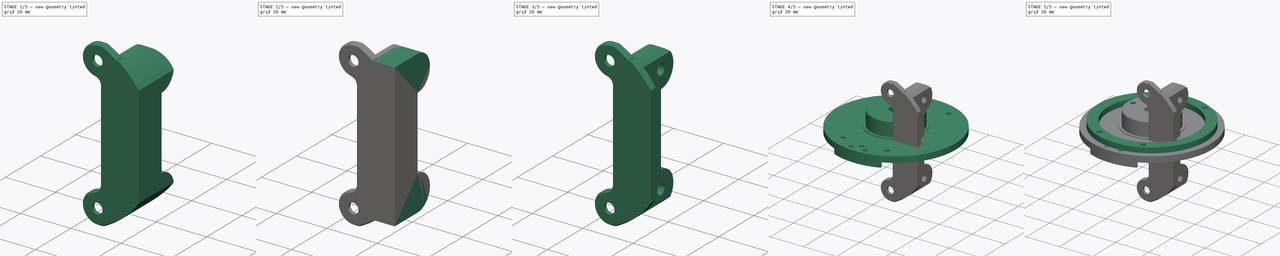
[diagram: build sequence overview — one tinted view per stage of 5, left to right]
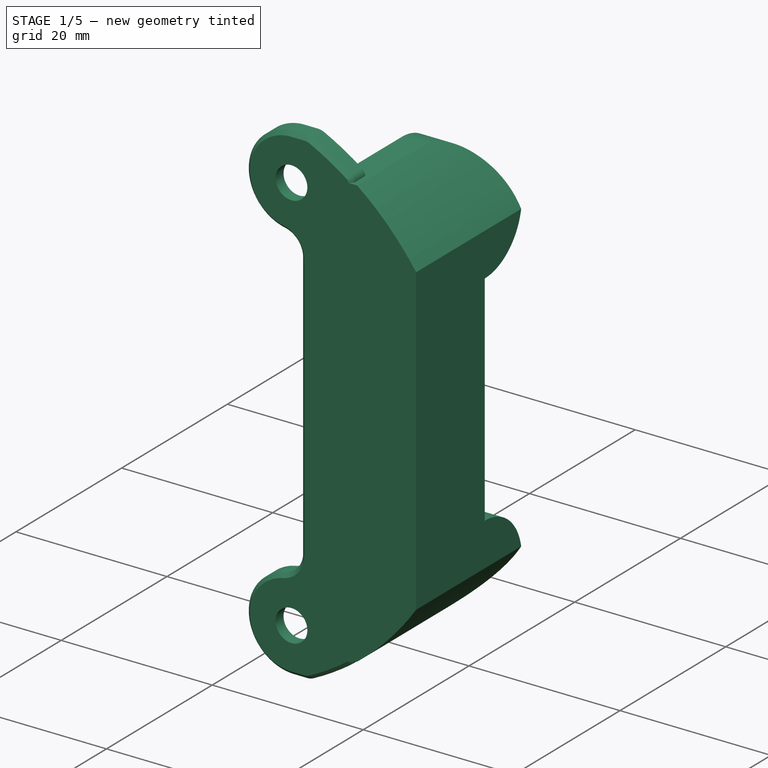
[diagram: stage 1 of 5 — iso view after this stage's code; geometry added in this stage tinted green]
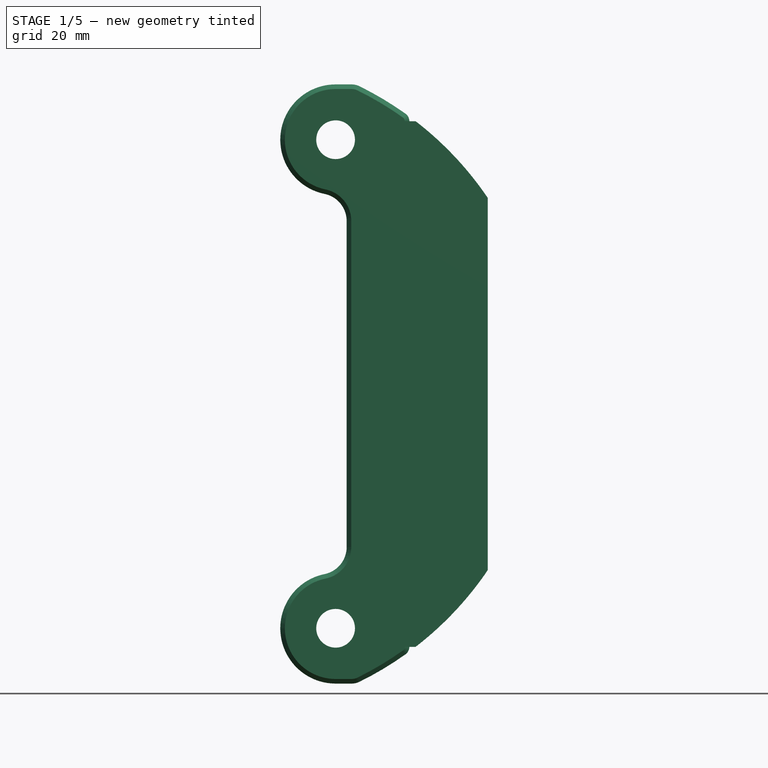
[diagram: stage 1 of 5 — front view after this stage's code; geometry added in this stage tinted green]
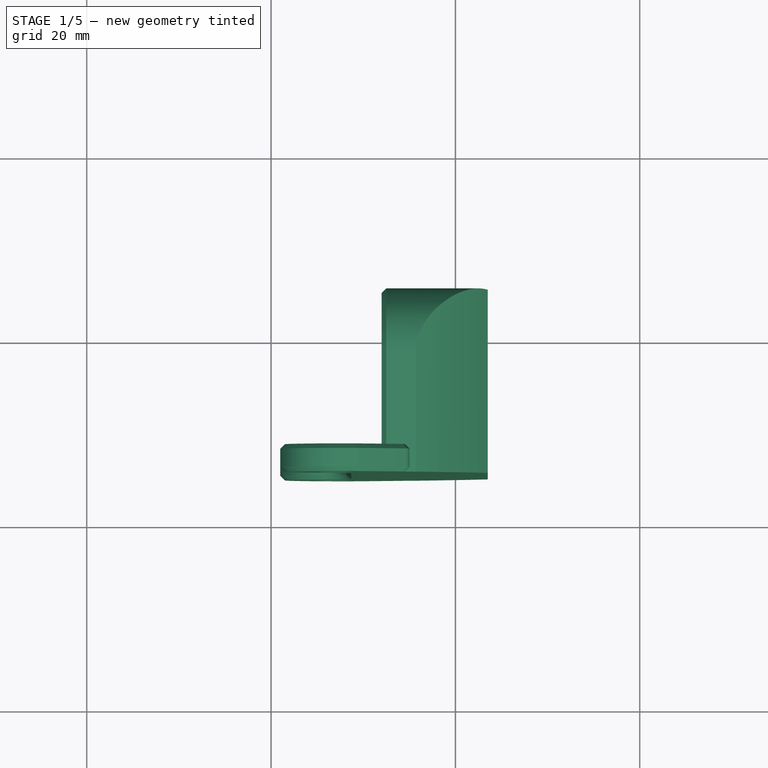
[diagram: stage 1 of 5 — top view after this stage's code; geometry added in this stage tinted green]
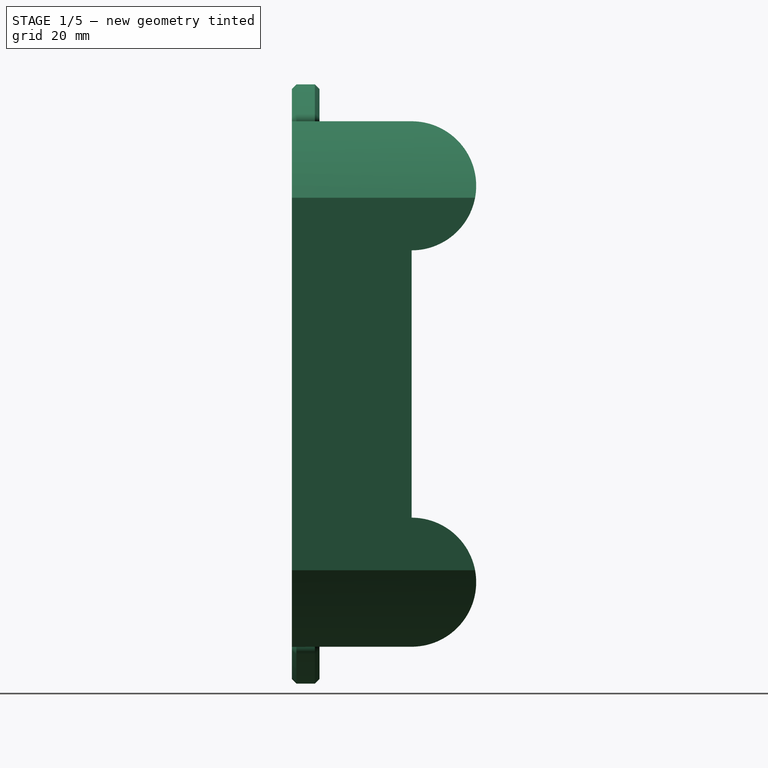
[diagram: stage 1 of 5 — right view after this stage's code; geometry added in this stage tinted green]
FCSTD DOCUMENT  (FreeCAD 0.18R16146 (Git))
Label: RotaryBaseMotorHold
License: All rights reserved
LicenseURL: http://en.wikipedia.org/wiki/All_rights_reserved
objects: Sketcher::SketchObject×14, PartDesign::Pocket×10, PartDesign::Pad×4, Part::Feature×3, PartDesign::FeatureBase×3, PartDesign::Body×3
note: 51 computed .brp shape members not serialized (recipe doc carries the construction recipe); baked Part::Feature solids carry a one-line shape summary decoded from their .brp

FEATURE [PartDesign::Body] Body
  BaseFeature = -> Part__Feature094
  Group = -> [BaseFeature,Sketch074,Pad017,Sketch075,Pocket046,Sketch076,Pocket047,Sketch077,Pocket048]
  Origin = -> Origin
  Placement = pos=(75.2,81.2,97.3) rot=(0.57735,0.57735,0.57735;2.0944rad)
  Tip = -> Pocket048
FEATURE [Part::Feature] Part__Feature095  label="L型连接件（一体化）002"
  Placement = pos=(85.1146,121.403,-113.604) rot=(0,-1,0;1.5708rad)
  shape: bbox 65 x 20 x 14 mm, 82 faces (baked)
FEATURE [PartDesign::FeatureBase] BaseFeature002
  BaseFeature = -> Part__Feature095
FEATURE [Sketcher::SketchObject] Sketch078
  ExternalGeometry = -> [BaseFeature002]
  MapMode = 7
  Placement = pos=(14.5,-12,14.5) rot=(0.57735,0.57735,0.57735;2.0944rad)
  Support = -> [BaseFeature002]
  sketch-geometry (6):
    g0: LineSegment StartX=-3 StartY=14 StartZ=0 EndX=10 EndY=14 EndZ=0
    g1: LineSegment StartX=10 StartY=3.6e-15 StartZ=0 EndX=10 EndY=-29 EndZ=0
    g2: LineSegment StartX=10 StartY=-43 StartZ=0 EndX=-3 EndY=-43.0116 EndZ=0
    g3: LineSegment StartX=-3 StartY=-43.0116 StartZ=0 EndX=-3 EndY=14 EndZ=0
    g4: ArcOfCircle CenterX=10 CenterY=7 CenterZ=0 NormalX=0 NormalY=0 NormalZ=1 AngleXU=0 Radius=7 StartAngle=4.71239 EndAngle=7.85398
    g5: ArcOfCircle CenterX=10 CenterY=-36 CenterZ=0 NormalX=0 NormalY=0 NormalZ=1 AngleXU=0 Radius=7 StartAngle=4.71239 EndAngle=7.85398
  constraints (16):
    c: Coincident(g2,g3)
    c: Coincident(g3,g0)
    c: Horizontal(g0)
    c: Vertical(g1)
    c: Vertical(g3)
    c: Coincident(g0,g-3)
    c: Coincident(g-6,g2)
    c: Coincident(g4,g-3)
    c: Coincident(g4,g0)
    c: Coincident(g4,g-3)
    c: Coincident(g5,g-4)
    c: Coincident(g5,g-4)
    c: PointOnObject(g1,g5)
    c: Coincident(g5,g-4)
    c: Coincident(g2,g5)
    c: Coincident(g1,g4)
FEATURE [PartDesign::Pad] Pad018
  BaseFeature = -> BaseFeature002
  Length = 9
  Length2 = 100
  Profile = -> Sketch078
  Type = 0
FEATURE [Sketcher::SketchObject] Sketch079
  ExternalGeometry = -> [Pad018]
  MapMode = 5
  Placement = pos=(0,-15,0) rot=(1,0,0;1.5708rad)
  Support = -> [Pad018]
  sketch-geometry (10):
    g0: ArcOfCircle CenterX=-6.3 CenterY=0 CenterZ=0 NormalX=0 NormalY=0 NormalZ=1 AngleXU=0 Radius=36 StartAngle=0.595661 EndAngle=0.913532
    g1: GeomPoint X=23.5 Y=20.198 Z=0
    g2: GeomPoint X=23.5 Y=-20.198 Z=0
    g3: GeomPoint X=15.6943 Y=28.5 Z=0
    g4: LineSegment StartX=15.6943 StartY=28.5 StartZ=0 EndX=23.5 EndY=28.5 EndZ=0
    g5: LineSegment StartX=23.5 StartY=28.5 StartZ=0 EndX=23.5 EndY=20.198 EndZ=0
    g6: GeomPoint X=15.6793 Y=-28.5116 Z=0
    g7: LineSegment StartX=15.6793 StartY=-28.5116 StartZ=0 EndX=23.5 EndY=-28.5116 EndZ=0
    g8: LineSegment StartX=23.5 StartY=-28.5116 StartZ=0 EndX=23.5 EndY=-20.198 EndZ=0
    g9: ArcOfCircle CenterX=-6.3 CenterY=0 CenterZ=0 NormalX=0 NormalY=0 NormalZ=1 AngleXU=0 Radius=36 StartAngle=5.36913 EndAngle=5.68752
  constraints (25):
    c: PointOnObject(g0,g-1)
    c: Radius(g0) = 36
    c: Distance(g0,g-2) = 6.3
    c: PointOnObject(g1,g0)
    c: PointOnObject(g1,g-3)
    c: PointOnObject(g2,g0)
    c: PointOnObject(g2,g-3)
    c: PointOnObject(g3,g-4)
    c: PointOnObject(g3,g0)
    c: Coincident(g4,g3)
    c: Coincident(g4,g-4)
    c: Coincident(g5,g4)
    c: Coincident(g5,g1)
    c: PointOnObject(g6,g-5)
    c: PointOnObject(g6,g0)
    c: Coincident(g7,g6)
    c: Coincident(g7,g-5)
    c: Coincident(g8,g7)
    c: Coincident(g8,g2)
    c: PointOnObject(g0,g5)
    c: PointOnObject(g9,g8)
    c: Equal(g0,g9)
    c: PointOnObject(g0,g4)
    c: PointOnObject(g9,g7)
    c: Coincident(g0,g9)
FEATURE [PartDesign::Pocket] Pocket050
  BaseFeature = -> Pad018
  Length = 22
  Length2 = 100
  Profile = -> Sketch079
  Type = 0
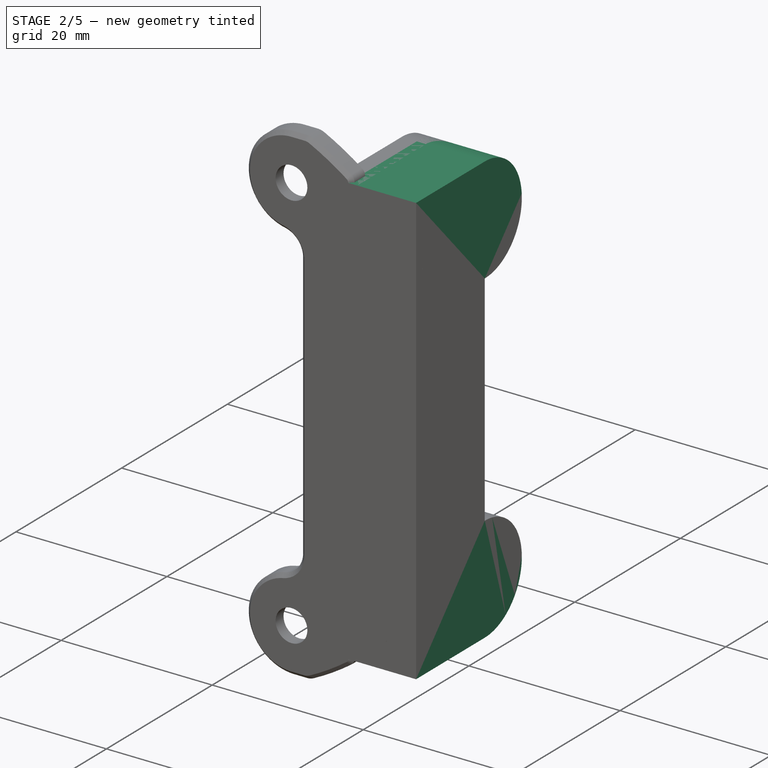
[diagram: stage 2 of 5 — iso view after this stage's code; geometry added in this stage tinted green]
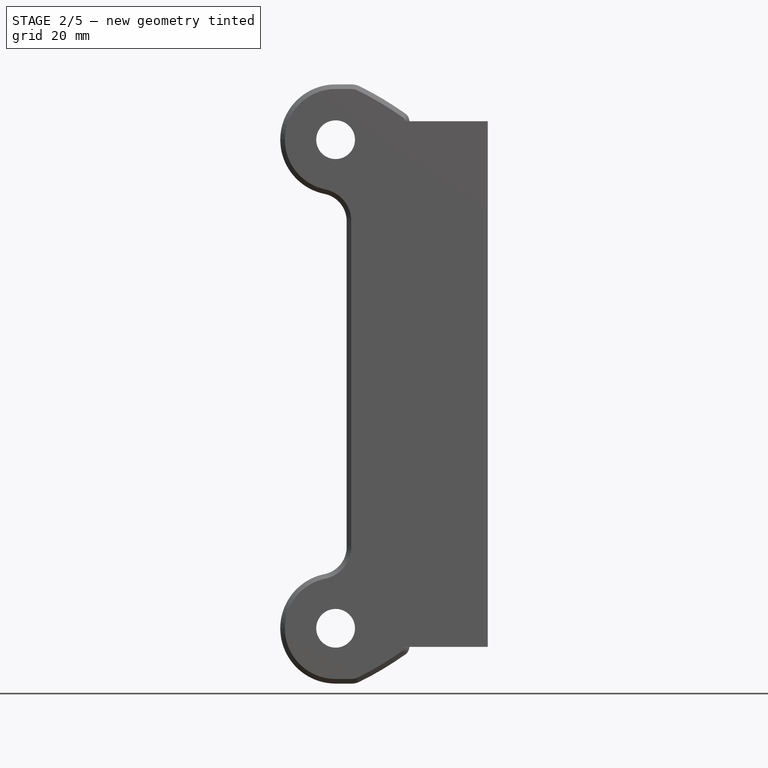
[diagram: stage 2 of 5 — front view after this stage's code; geometry added in this stage tinted green]
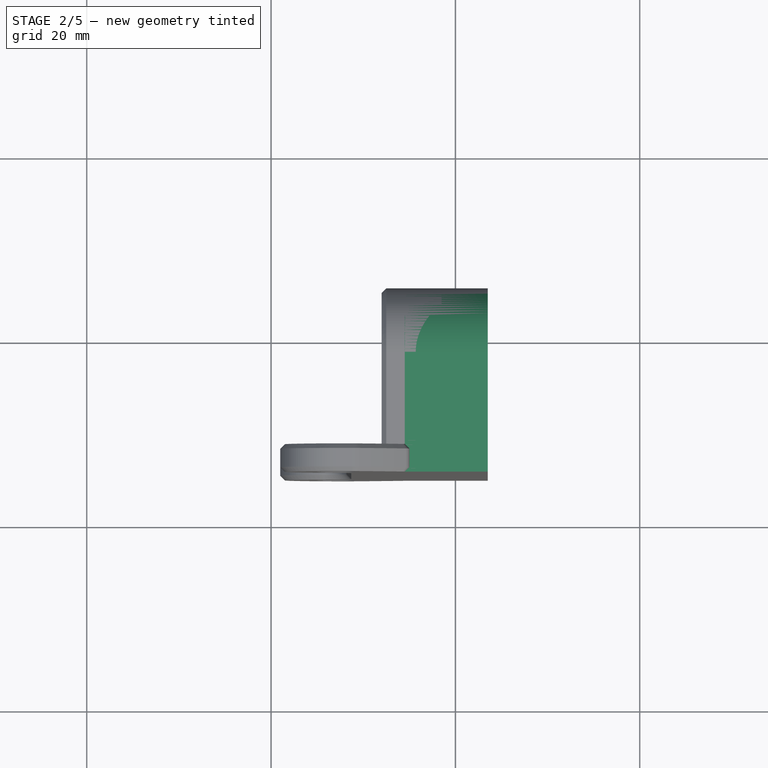
[diagram: stage 2 of 5 — top view after this stage's code; geometry added in this stage tinted green]
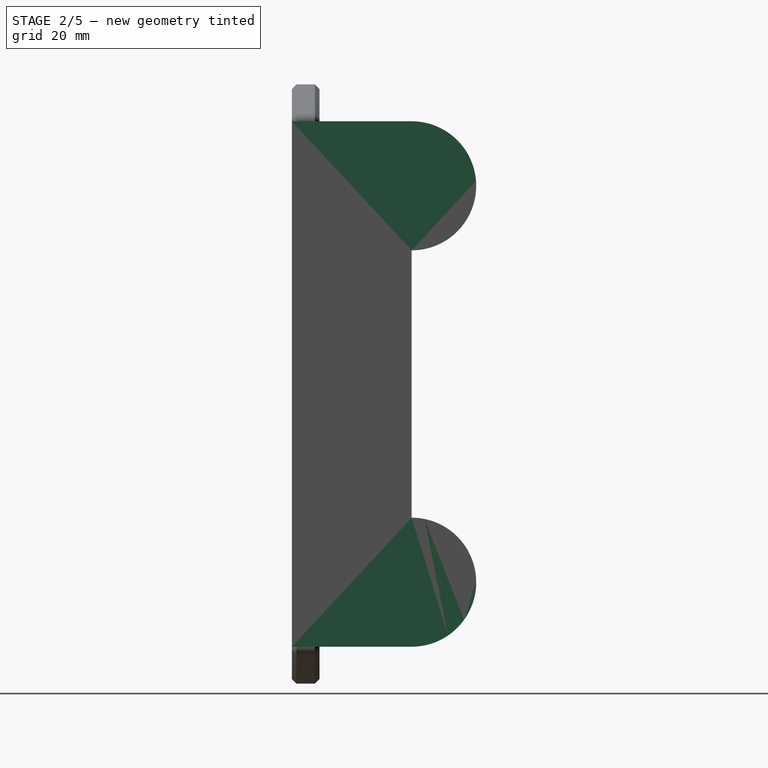
[diagram: stage 2 of 5 — right view after this stage's code; geometry added in this stage tinted green]
FEATURE [Part::Feature] Part__Feature094  label="L型连接件（一体化）001"
  Placement = pos=(85.1146,121.403,-113.604) rot=(0,-1,0;1.5708rad)
  shape: bbox 65 x 20 x 14 mm, 82 faces (baked)
FEATURE [PartDesign::FeatureBase] BaseFeature
  BaseFeature = -> Part__Feature094
FEATURE [PartDesign::Body] Body001  label="RotaryDisk"
  BaseFeature = -> Part__Feature
  Group = -> [BaseFeature001,Sketch,Sketch067,Pocket043,Sketch068,Pocket044,Pad,Sketch070,Pad016,Sketch071,Pocket,Sketch072,Pocket045]
  Origin = -> Origin001
  Placement = pos=(75.2,74.9,80) rot=(0.707107,0.707107,0;3.14159rad)
  Tip = -> Pocket045
FEATURE [Sketcher::SketchObject] Sketch074
  ExternalGeometry = -> [BaseFeature]
  MapMode = 7
  Placement = pos=(14.5,-12,14.5) rot=(0.57735,0.57735,0.57735;2.0944rad)
  Support = -> [BaseFeature]
  sketch-geometry (6):
    g0: LineSegment StartX=-3 StartY=14 StartZ=0 EndX=10 EndY=14 EndZ=0
    g1: LineSegment StartX=10 StartY=3.6e-15 StartZ=0 EndX=10 EndY=-29 EndZ=0
    g2: LineSegment StartX=10 StartY=-43 StartZ=0 EndX=-3 EndY=-43.0116 EndZ=0
    g3: LineSegment StartX=-3 StartY=-43.0116 StartZ=0 EndX=-3 EndY=14 EndZ=0
    g4: ArcOfCircle CenterX=10 CenterY=7 CenterZ=0 NormalX=0 NormalY=0 NormalZ=1 AngleXU=0 Radius=7 StartAngle=4.71239 EndAngle=7.85398
    g5: ArcOfCircle CenterX=10 CenterY=-36 CenterZ=0 NormalX=0 NormalY=0 NormalZ=1 AngleXU=0 Radius=7 StartAngle=4.71239 EndAngle=7.85398
  constraints (16):
    c: Coincident(g2,g3)
    c: Coincident(g3,g0)
    c: Horizontal(g0)
    c: Vertical(g1)
    c: Vertical(g3)
    c: Coincident(g0,g-3)
    c: Coincident(g-6,g2)
    c: Coincident(g4,g-3)
    c: Coincident(g4,g0)
    c: Coincident(g4,g-3)
    c: Coincident(g5,g-4)
    c: Coincident(g5,g-4)
    c: PointOnObject(g1,g5)
    c: Coincident(g5,g-4)
    c: Coincident(g2,g5)
    c: Coincident(g1,g4)
FEATURE [PartDesign::Pad] Pad017
  BaseFeature = -> BaseFeature
  Length = 9
  Length2 = 100
  Profile = -> Sketch074
  Type = 0
FEATURE [Sketcher::SketchObject] Sketch080
  ExternalGeometry = -> [Pocket050]
  MapMode = 5
  Placement = pos=(14.5,0,0) rot=(0.57735,-0.57735,-0.57735;2.0944rad)
  Support = -> [Pocket050]
  sketch-geometry (2):
    g0: Circle CenterX=2 CenterY=-21.5 CenterZ=0 NormalX=0 NormalY=0 NormalZ=1 AngleXU=0 Radius=2.1
    g1: Circle CenterX=2 CenterY=21.5 CenterZ=0 NormalX=0 NormalY=0 NormalZ=1 AngleXU=0 Radius=2.1
  constraints (4):
    c: Coincident(g0,g-4)
    c: PointOnObject(g-4,g0)
    c: Coincident(g1,g-6)
    c: PointOnObject(g-6,g1)
FEATURE [PartDesign::Pocket] Pocket049
  BaseFeature = -> Pocket050
  Length = 5
  Length2 = 100
  Profile = -> Sketch080
  Type = 1
FEATURE [Sketcher::SketchObject] Sketch081
  ExternalGeometry = -> [Pocket049]
  MapMode = 5
  Placement = pos=(23.5,0,0) rot=(0.57735,0.57735,0.57735;2.0944rad)
  Support = -> [Pocket049]
  sketch-geometry (4):
    g0: LineSegment StartX=-12 StartY=28.5 StartZ=0 EndX=5 EndY=28.5 EndZ=0
    g1: LineSegment StartX=5 StartY=28.5 StartZ=0 EndX=5 EndY=-28.5 EndZ=0
    g2: LineSegment StartX=5 StartY=-28.5 StartZ=0 EndX=-12 EndY=-28.5 EndZ=0
    g3: LineSegment StartX=-12 StartY=-28.5 StartZ=0 EndX=-12 EndY=28.5 EndZ=0
  constraints (12):
    c: Coincident(g0,g1)
    c: Coincident(g1,g2)
    c: Coincident(g2,g3)
    c: Coincident(g3,g0)
    c: Horizontal(g0)
    c: Horizontal(g2)
    c: Vertical(g1)
    c: Vertical(g3)
    c: Distance(g-3,g3) = 10
    c: Distance(g1) = 57
    c: Distance(g-1,g0) = 28.5
    c: PointOnObject(g-4,g1)
FEATURE [PartDesign::Pocket] Pocket051
  BaseFeature = -> Pocket049
  Length = 5
  Length2 = 100
  Profile = -> Sketch081
  Type = 0
FEATURE [PartDesign::Body] Body002
  BaseFeature = -> Part__Feature095
  Group = -> [BaseFeature002,Sketch078,Pad018,Sketch079,Pocket050,Sketch080,Pocket049,Sketch081,Pocket051]
  Origin = -> Origin002
  Placement = pos=(75.2,68.6,97.3) rot=(-0.57735,0.57735,0.57735;4.18879rad)
  Tip = -> Pocket051
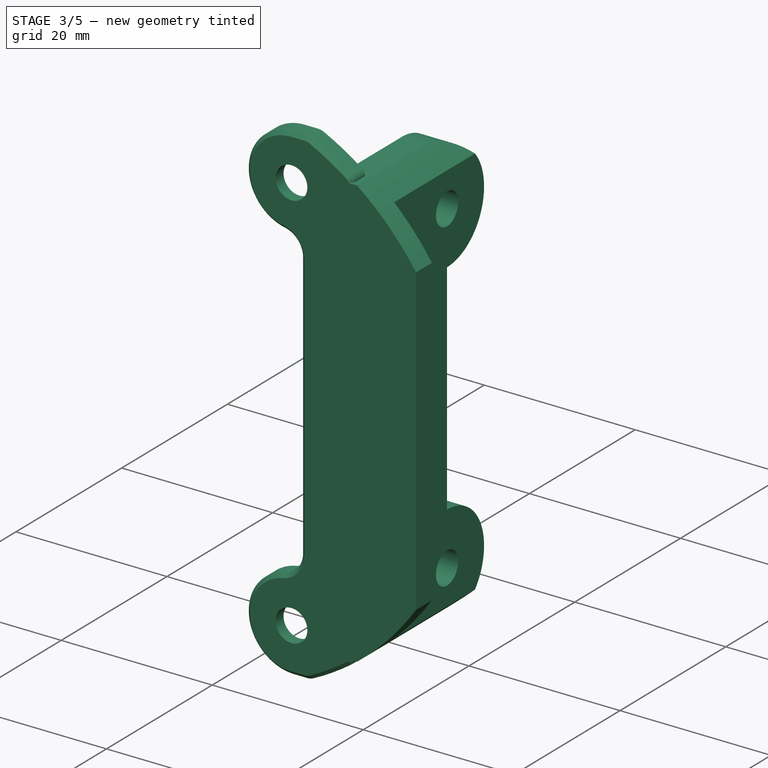
[diagram: stage 3 of 5 — iso view after this stage's code; geometry added in this stage tinted green]
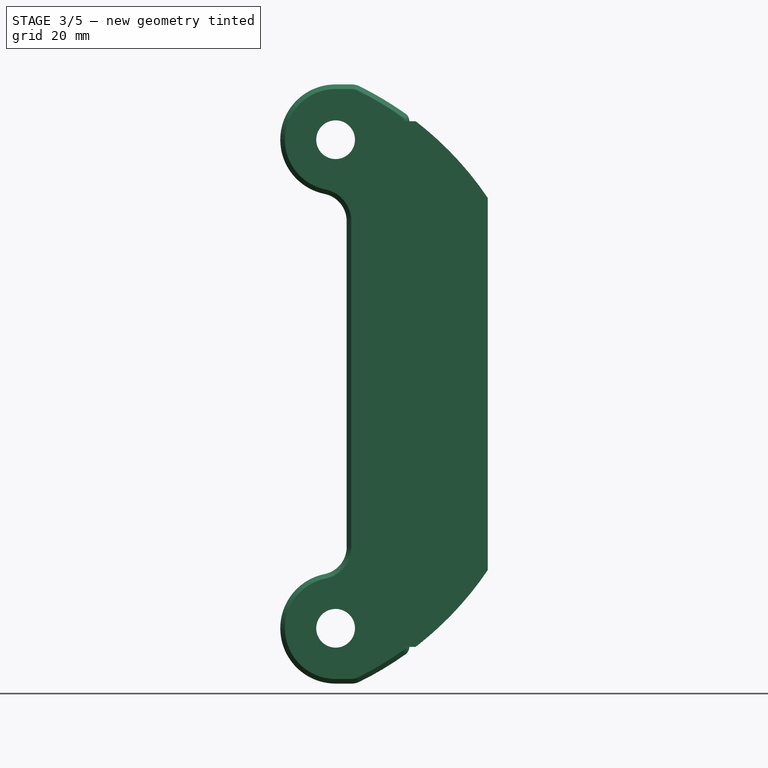
[diagram: stage 3 of 5 — front view after this stage's code; geometry added in this stage tinted green]
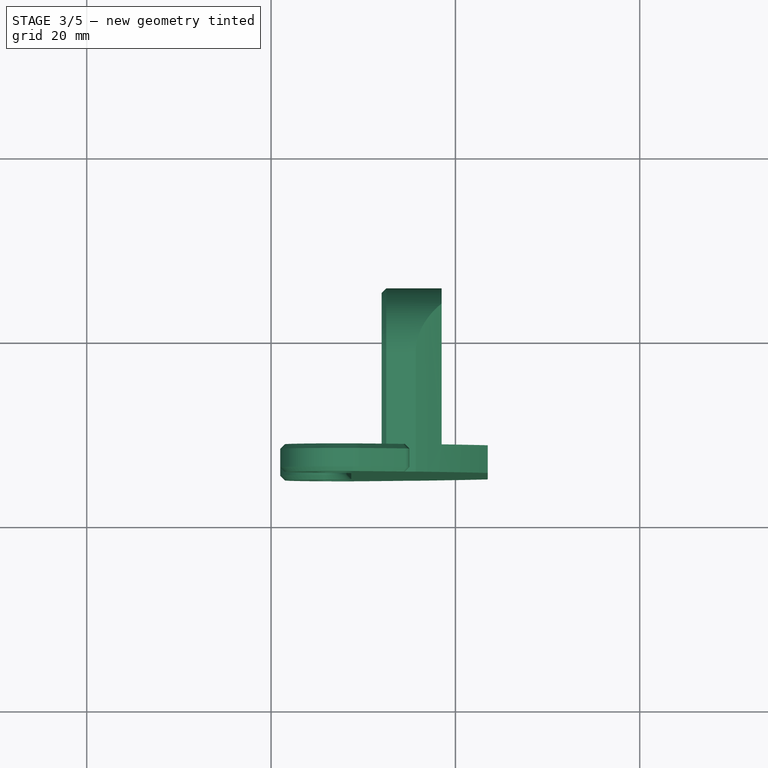
[diagram: stage 3 of 5 — top view after this stage's code; geometry added in this stage tinted green]
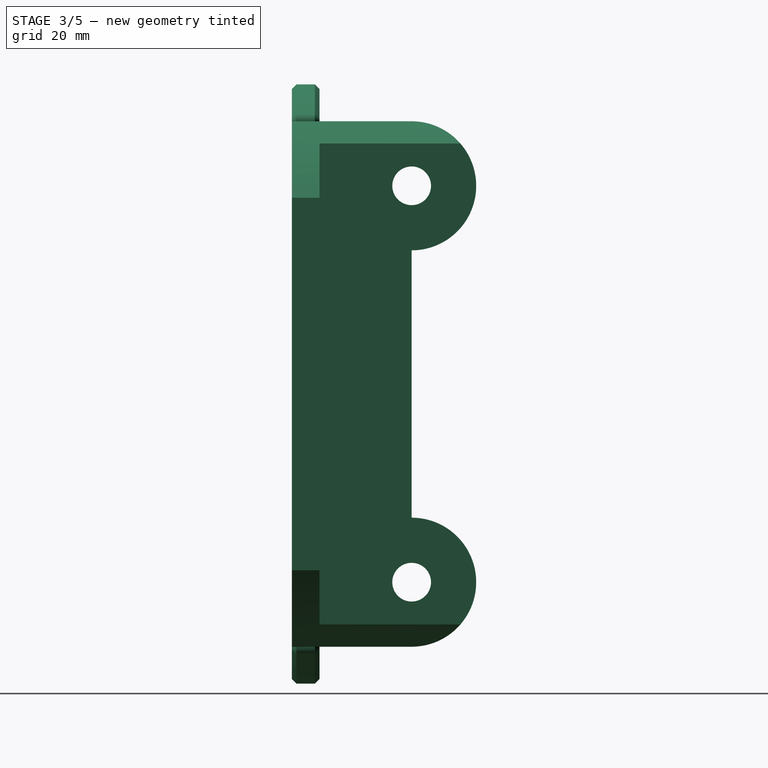
[diagram: stage 3 of 5 — right view after this stage's code; geometry added in this stage tinted green]
FEATURE [Sketcher::SketchObject] Sketch075
  ExternalGeometry = -> [Pad017]
  MapMode = 5
  Placement = pos=(0,-15,0) rot=(1,0,0;1.5708rad)
  Support = -> [Pad017]
  sketch-geometry (10):
    g0: ArcOfCircle CenterX=-6.3 CenterY=0 CenterZ=0 NormalX=0 NormalY=0 NormalZ=1 AngleXU=0 Radius=36 StartAngle=0.595661 EndAngle=0.913532
    g1: GeomPoint X=23.5 Y=20.198 Z=0
    g2: GeomPoint X=23.5 Y=-20.198 Z=0
    g3: GeomPoint X=15.6943 Y=28.5 Z=0
    g4: LineSegment StartX=15.6943 StartY=28.5 StartZ=0 EndX=23.5 EndY=28.5 EndZ=0
    g5: LineSegment StartX=23.5 StartY=28.5 StartZ=0 EndX=23.5 EndY=20.198 EndZ=0
    g6: GeomPoint X=15.6793 Y=-28.5116 Z=0
    g7: LineSegment StartX=15.6793 StartY=-28.5116 StartZ=0 EndX=23.5 EndY=-28.5116 EndZ=0
    g8: LineSegment StartX=23.5 StartY=-28.5116 StartZ=0 EndX=23.5 EndY=-20.198 EndZ=0
    g9: ArcOfCircle CenterX=-6.3 CenterY=0 CenterZ=0 NormalX=0 NormalY=0 NormalZ=1 AngleXU=0 Radius=36 StartAngle=5.36913 EndAngle=5.68752
  constraints (25):
    c: PointOnObject(g0,g-1)
    c: Radius(g0) = 36
    c: Distance(g0,g-2) = 6.3
    c: PointOnObject(g1,g0)
    c: PointOnObject(g1,g-3)
    c: PointOnObject(g2,g0)
    c: PointOnObject(g2,g-3)
    c: PointOnObject(g3,g-4)
    c: PointOnObject(g3,g0)
    c: Coincident(g4,g3)
    c: Coincident(g4,g-4)
    c: Coincident(g5,g4)
    c: Coincident(g5,g1)
    c: PointOnObject(g6,g-5)
    c: PointOnObject(g6,g0)
    c: Coincident(g7,g6)
    c: Coincident(g7,g-5)
    c: Coincident(g8,g7)
    c: Coincident(g8,g2)
    c: PointOnObject(g0,g5)
    c: PointOnObject(g9,g8)
    c: Equal(g0,g9)
    c: PointOnObject(g0,g4)
    c: PointOnObject(g9,g7)
    c: Coincident(g0,g9)
FEATURE [PartDesign::Pocket] Pocket046
  BaseFeature = -> Pad017
  Length = 22
  Length2 = 100
  Profile = -> Sketch075
  Type = 0
FEATURE [Sketcher::SketchObject] Sketch076
  ExternalGeometry = -> [Pocket046]
  MapMode = 5
  Placement = pos=(14.5,0,0) rot=(0.57735,-0.57735,-0.57735;2.0944rad)
  Support = -> [Pocket046]
  sketch-geometry (2):
    g0: Circle CenterX=2 CenterY=-21.5 CenterZ=0 NormalX=0 NormalY=0 NormalZ=1 AngleXU=0 Radius=2.1
    g1: Circle CenterX=2 CenterY=21.5 CenterZ=0 NormalX=0 NormalY=0 NormalZ=1 AngleXU=0 Radius=2.1
  constraints (4):
    c: Coincident(g0,g-4)
    c: PointOnObject(g-4,g0)
    c: Coincident(g1,g-6)
    c: PointOnObject(g-6,g1)
FEATURE [PartDesign::Pocket] Pocket047
  BaseFeature = -> Pocket046
  Length = 5
  Length2 = 100
  Profile = -> Sketch076
  Type = 1
FEATURE [Sketcher::SketchObject] Sketch077
  ExternalGeometry = -> [Pocket047]
  MapMode = 5
  Placement = pos=(23.5,0,0) rot=(0.57735,0.57735,0.57735;2.0944rad)
  Support = -> [Pocket047]
  sketch-geometry (4):
    g0: LineSegment StartX=-12 StartY=28.5 StartZ=0 EndX=5 EndY=28.5 EndZ=0
    g1: LineSegment StartX=5 StartY=28.5 StartZ=0 EndX=5 EndY=-28.5 EndZ=0
    g2: LineSegment StartX=5 StartY=-28.5 StartZ=0 EndX=-12 EndY=-28.5 EndZ=0
    g3: LineSegment StartX=-12 StartY=-28.5 StartZ=0 EndX=-12 EndY=28.5 EndZ=0
  constraints (12):
    c: Coincident(g0,g1)
    c: Coincident(g1,g2)
    c: Coincident(g2,g3)
    c: Coincident(g3,g0)
    c: Horizontal(g0)
    c: Horizontal(g2)
    c: Vertical(g1)
    c: Vertical(g3)
    c: Distance(g-3,g3) = 10
    c: Distance(g1) = 57
    c: Distance(g-1,g0) = 28.5
    c: PointOnObject(g-4,g1)
FEATURE [PartDesign::Pocket] Pocket048
  BaseFeature = -> Pocket047
  Length = 5
  Length2 = 100
  Profile = -> Sketch077
  Type = 0
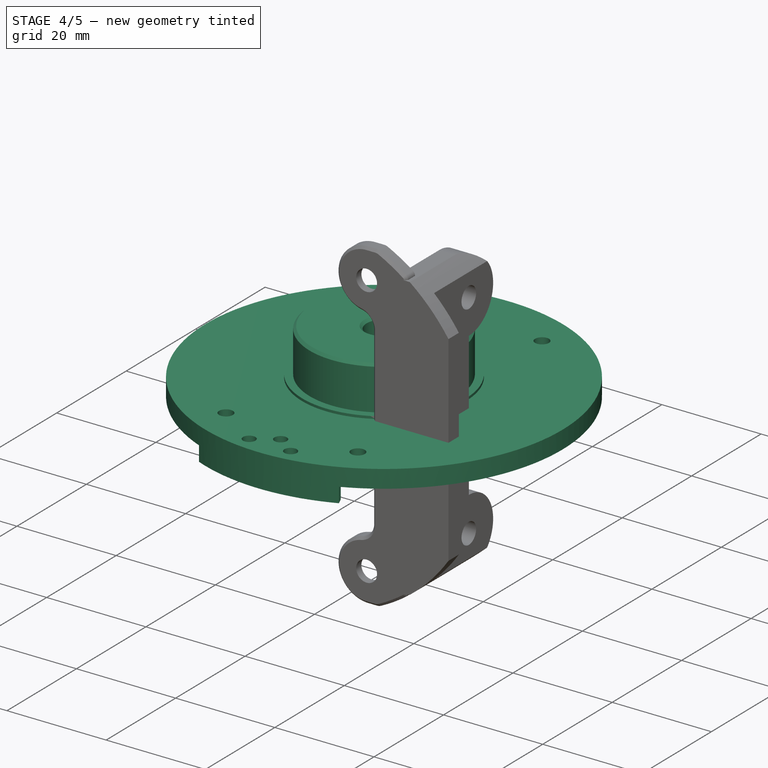
[diagram: stage 4 of 5 — iso view after this stage's code; geometry added in this stage tinted green]
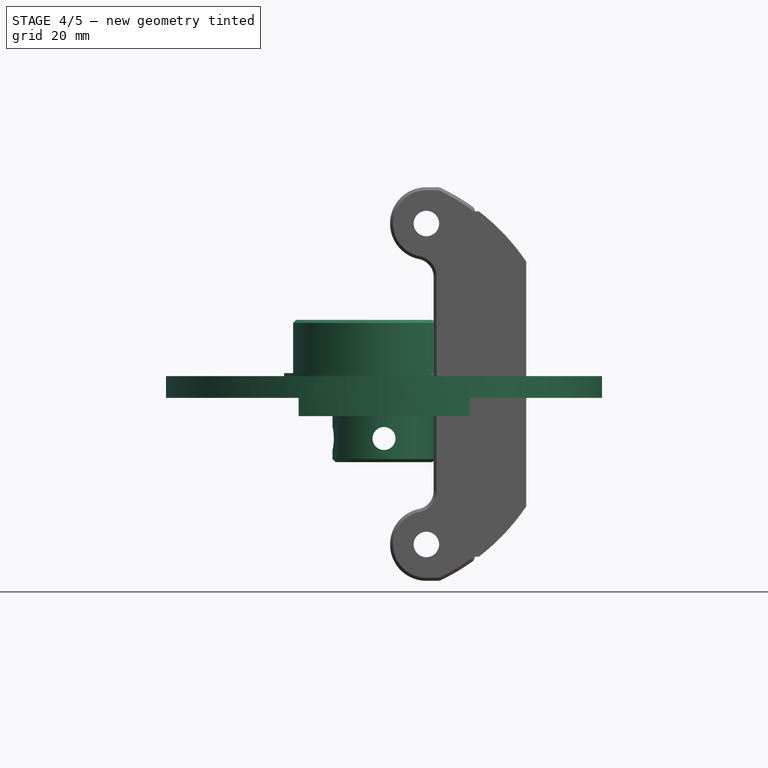
[diagram: stage 4 of 5 — front view after this stage's code; geometry added in this stage tinted green]
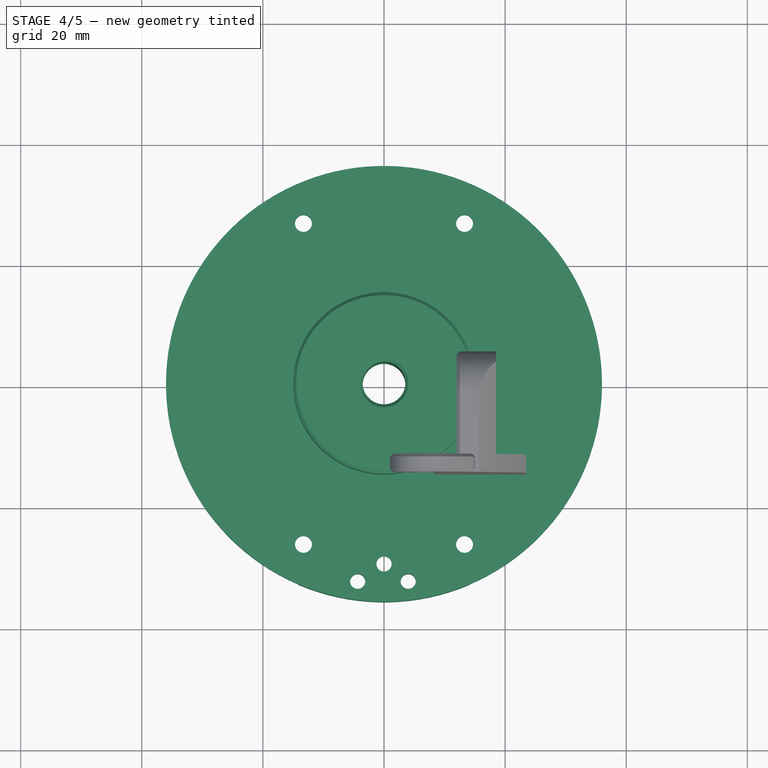
[diagram: stage 4 of 5 — top view after this stage's code; geometry added in this stage tinted green]
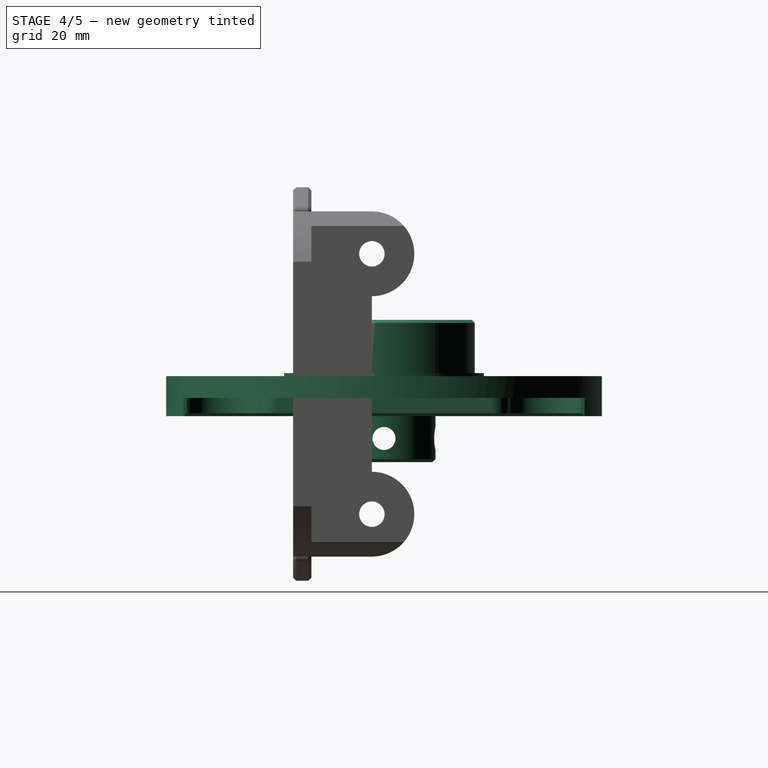
[diagram: stage 4 of 5 — right view after this stage's code; geometry added in this stage tinted green]
FEATURE [Part::Feature] Part__Feature  label="轴承支撑轴"
  Placement = pos=(85.1146,104.103,-119.904) rot=(0.57735,0.57735,-0.57735;2.0944rad)
  shape: bbox 72 x 23.5 x 72 mm, 84 faces (baked)
FEATURE [PartDesign::FeatureBase] BaseFeature001
  BaseFeature = -> Part__Feature
FEATURE [Sketcher::SketchObject] Sketch067
  MapMode = 5
  Placement = pos=(0,0,0) rot=(1,0,0;1.5708rad)
  Support = -> [XZ_Plane001]
  sketch-geometry (2):
    g0: GeomPoint X=0 Y=-9 Z=0
    g1: Circle CenterX=0 CenterY=-9 CenterZ=0 NormalX=0 NormalY=0 NormalZ=1 AngleXU=0 Radius=1.9
  constraints (3):
    c: PointOnObject(g0,g-2)
    c: Coincident(g1,g0)
    c: Radius(g1) = 1.9
FEATURE [PartDesign::Pocket] Pocket043
  BaseFeature = -> BaseFeature001
  Length = 17
  Length2 = 100
  Midplane = true
  Profile = -> Sketch067
  Type = 1
FEATURE [Sketcher::SketchObject] Sketch068
  ExternalGeometry = -> [Pocket043]
  MapMode = 5
  Placement = pos=(0,0,0) rot=(0.57735,0.57735,0.57735;2.0944rad)
  Support = -> [YZ_Plane001]
  sketch-geometry (1):
    g0: Circle CenterX=0 CenterY=-9 CenterZ=0 NormalX=0 NormalY=0 NormalZ=1 AngleXU=0 Radius=1.9
  constraints (3):
    c: PointOnObject(g0,g-2)
    c: Radius(g0) = 1.9
    c: DistanceY(g0,g-1) = 9
FEATURE [PartDesign::Pocket] Pocket044
  BaseFeature = -> Pocket043
  Length = 5
  Length2 = 100
  Midplane = true
  Profile = -> Sketch068
  Type = 1
FEATURE [Sketcher::SketchObject] Sketch
  ExternalGeometry = -> [BaseFeature001]
  MapMode = 5
  Placement = pos=(0,0,-2.3) rot=(1,0,0;3.14159rad)
  Support = -> [BaseFeature001]
  sketch-geometry (8):
    g0: Circle CenterX=13.3 CenterY=26.5 CenterZ=0 NormalX=0 NormalY=0 NormalZ=1 AngleXU=0 Radius=1.4
    g1: Circle CenterX=-13.3 CenterY=26.5 CenterZ=0 NormalX=0 NormalY=0 NormalZ=1 AngleXU=0 Radius=1.4
    g2: Circle CenterX=-13.3 CenterY=-26.5 CenterZ=0 NormalX=0 NormalY=0 NormalZ=1 AngleXU=0 Radius=1.4
    g3: Circle CenterX=13.3 CenterY=-26.5 CenterZ=0 NormalX=0 NormalY=0 NormalZ=1 AngleXU=0 Radius=1.4
    g4: Circle CenterX=-13.3 CenterY=26.5 CenterZ=0 NormalX=0 NormalY=0 NormalZ=1 AngleXU=0 Radius=1.65
    g5: Circle CenterX=13.3 CenterY=26.5 CenterZ=0 NormalX=0 NormalY=0 NormalZ=1 AngleXU=0 Radius=1.65
    g6: Circle CenterX=13.3 CenterY=-26.5 CenterZ=0 NormalX=0 NormalY=0 NormalZ=1 AngleXU=0 Radius=1.65
    g7: Circle CenterX=-13.3 CenterY=-26.5 CenterZ=0 NormalX=0 NormalY=0 NormalZ=1 AngleXU=0 Radius=1.65
  constraints (16):
    c: Radius(g0) = 1.4
    c: Coincident(g1,g-8)
    c: Coincident(g2,g-4)
    c: Coincident(g3,g-6)
    c: Radius(g2) = 1.4
    c: Radius(g3) = 1.4
    c: Radius(g1) = 1.4
    c: Coincident(g0,g-10)
    c: Coincident(g4,g1)
    c: PointOnObject(g-8,g4)
    c: Coincident(g5,g0)
    c: PointOnObject(g-10,g5)
    c: Coincident(g6,g3)
    c: PointOnObject(g-6,g6)
    c: Coincident(g7,g2)
    c: PointOnObject(g-4,g7)
FEATURE [PartDesign::Pad] Pad
  BaseFeature = -> Pocket044
  Length = 3.6
  Length2 = 100
  Profile = -> Sketch
  Reversed = true
  Type = 0
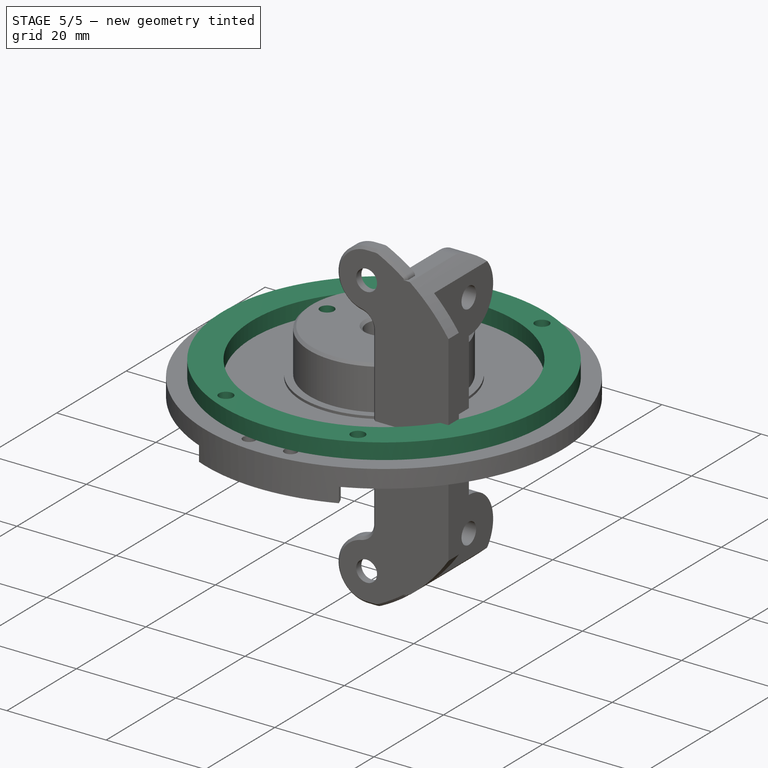
[diagram: stage 5 of 5 — iso view after this stage's code; geometry added in this stage tinted green]
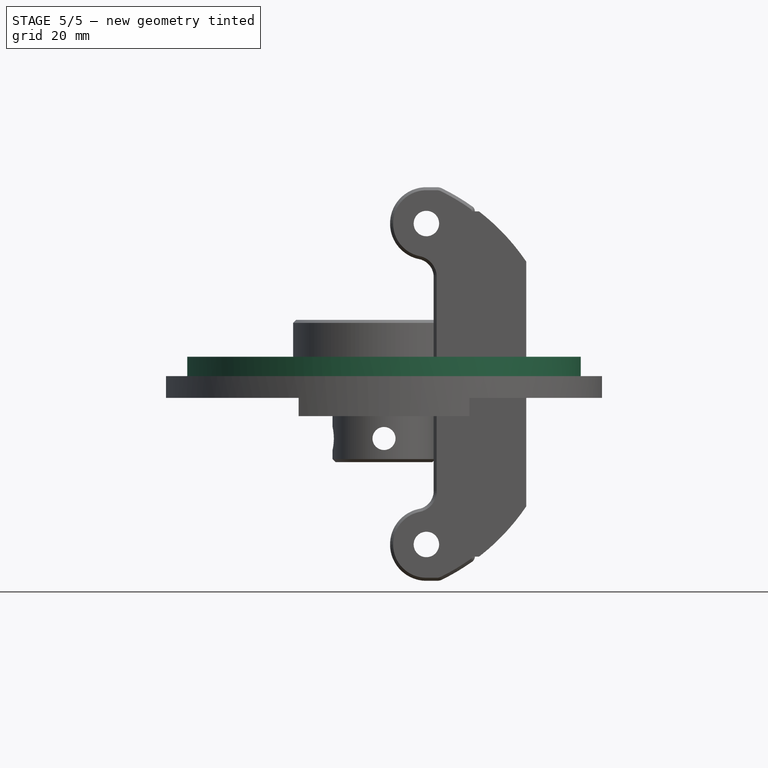
[diagram: stage 5 of 5 — front view after this stage's code; geometry added in this stage tinted green]
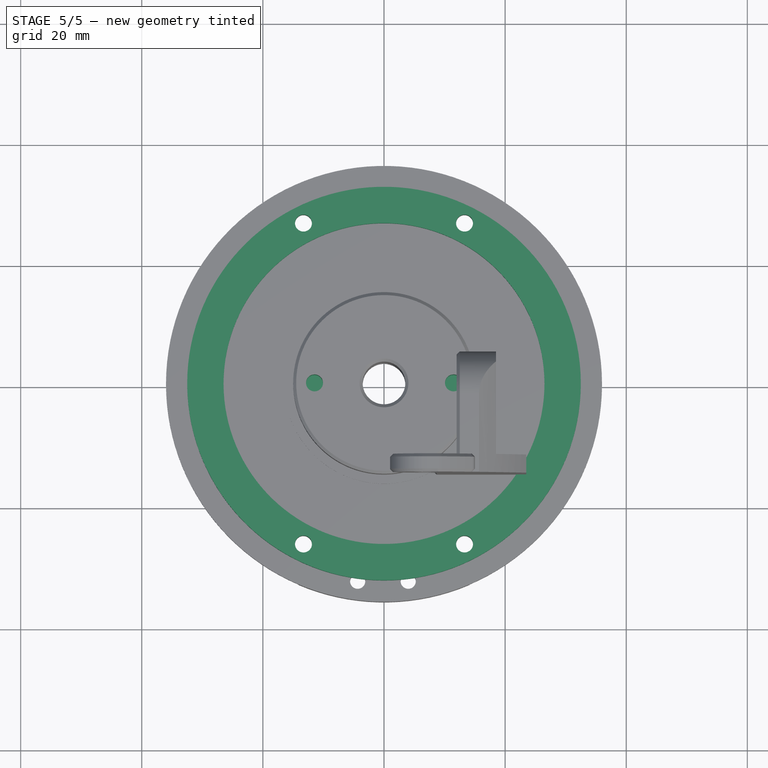
[diagram: stage 5 of 5 — top view after this stage's code; geometry added in this stage tinted green]
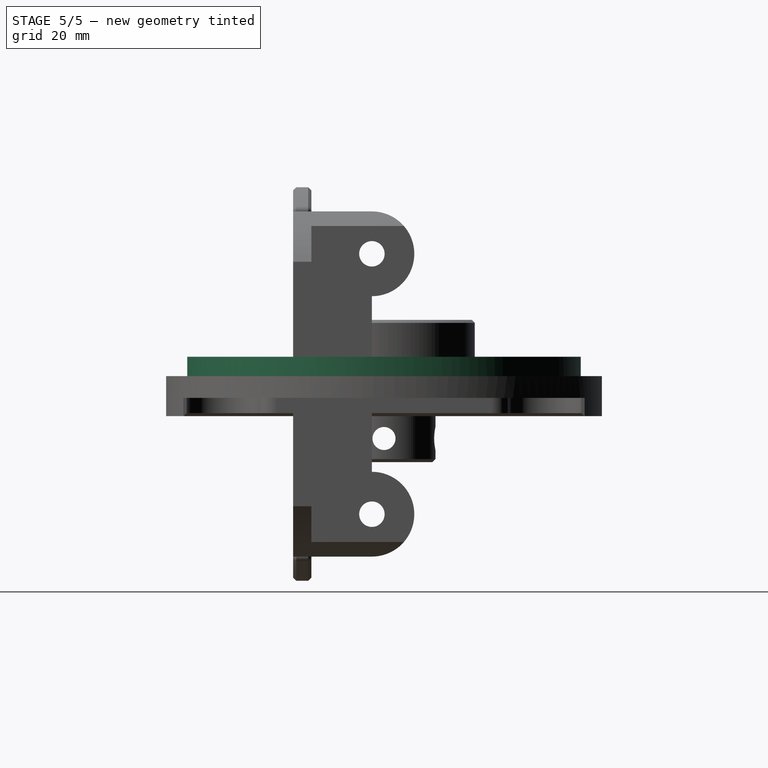
[diagram: stage 5 of 5 — right view after this stage's code; geometry added in this stage tinted green]
FEATURE [Sketcher::SketchObject] Sketch070
  MapMode = 5
  Placement = pos=(0,0,1.3) rot=(0,0,1;0rad)
  Support = -> [Pad]
  sketch-geometry (2):
    g0: Circle CenterX=0 CenterY=0 CenterZ=0 NormalX=0 NormalY=0 NormalZ=1 AngleXU=0 Radius=26.5
    g1: Circle CenterX=0 CenterY=0 CenterZ=0 NormalX=0 NormalY=0 NormalZ=1 AngleXU=0 Radius=32.5
  constraints (4):
    c: Coincident(g0,g-1)
    c: Radius(g0) = 26.5
    c: Coincident(g1,g0)
    c: Radius(g1) = 32.5
FEATURE [PartDesign::Pad] Pad016
  BaseFeature = -> Pad
  Length = 3.2
  Length2 = 100
  Profile = -> Sketch070
  Type = 0
FEATURE [Sketcher::SketchObject] Sketch071
  ExternalGeometry = -> [Pad016]
  MapMode = 5
  Placement = pos=(0,0,1.3) rot=(1,0,0;3.14159rad)
  Support = -> [Pad016]
  sketch-geometry (4):
    g0: Circle CenterX=-13.3 CenterY=-26.5 CenterZ=0 NormalX=0 NormalY=0 NormalZ=1 AngleXU=0 Radius=1.4
    g1: Circle CenterX=13.3 CenterY=-26.5 CenterZ=0 NormalX=0 NormalY=0 NormalZ=1 AngleXU=0 Radius=1.4
    g2: Circle CenterX=13.3 CenterY=26.5 CenterZ=0 NormalX=0 NormalY=0 NormalZ=1 AngleXU=0 Radius=1.4
    g3: Circle CenterX=-13.3 CenterY=26.5 CenterZ=0 NormalX=0 NormalY=0 NormalZ=1 AngleXU=0 Radius=1.4
  constraints (8):
    c: Coincident(g0,g-6)
    c: Radius(g0) = 1.4
    c: Coincident(g1,g-5)
    c: Radius(g1) = 1.4
    c: Coincident(g2,g-4)
    c: Radius(g2) = 1.4
    c: Coincident(g3,g-3)
    c: Radius(g3) = 1.4
FEATURE [PartDesign::Pocket] Pocket
  BaseFeature = -> Pad016
  Length = 5
  Length2 = 100
  Profile = -> Sketch071
  Type = 1
FEATURE [Sketcher::SketchObject] Sketch072
  ExternalGeometry = -> [Pocket]
  MapMode = 5
  Placement = pos=(0,0,10.6) rot=(0,0,1;0rad)
  Support = -> [Pocket]
  sketch-geometry (3):
    g0: Circle [constr] CenterX=0 CenterY=0 CenterZ=0 NormalX=0 NormalY=0 NormalZ=1 AngleXU=0 Radius=11.475
    g1: Circle CenterX=-11.475 CenterY=0 CenterZ=0 NormalX=0 NormalY=0 NormalZ=1 AngleXU=0 Radius=1.4
    g2: Circle CenterX=11.475 CenterY=0 CenterZ=0 NormalX=0 NormalY=0 NormalZ=1 AngleXU=0 Radius=1.4
  constraints (10):
    c: Distance(g-1,g-6) = 3.525
    c: Distance(g-1,g-4) = 15
    c: Coincident(g0,g-1)
    c: Radius(g0) = 11.475
    c: PointOnObject(g1,g-1)
    c: PointOnObject(g1,g0)
    c: Radius(g1) = 1.4
    c: PointOnObject(g2,g-1)
    c: PointOnObject(g2,g0)
    c: Radius(g2) = 1.4
FEATURE [PartDesign::Pocket] Pocket045
  BaseFeature = -> Pocket
  Length = 6
  Length2 = 100
  Profile = -> Sketch072
  Type = 0
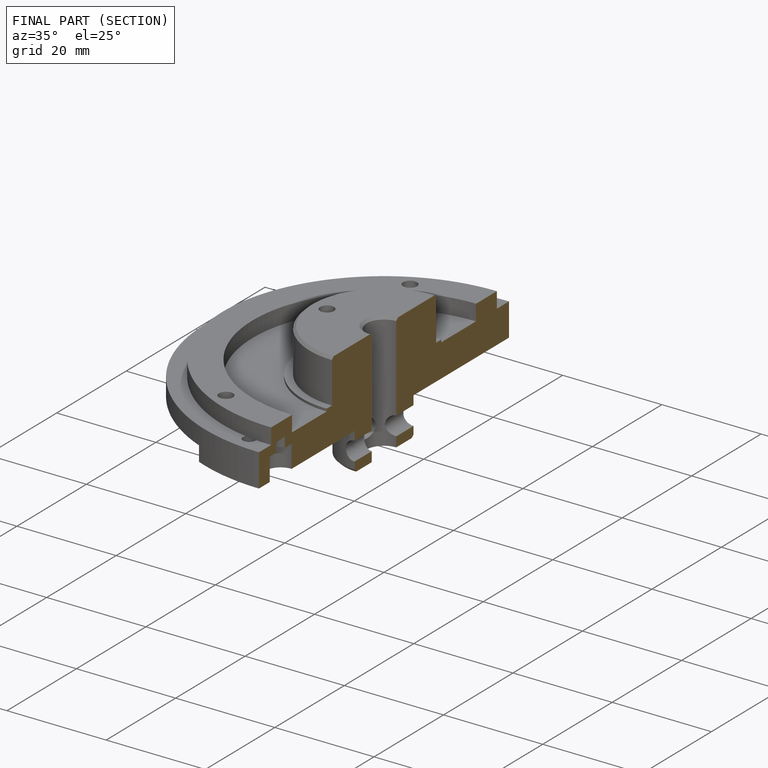
[diagram: finished part — half-section view (interior)]
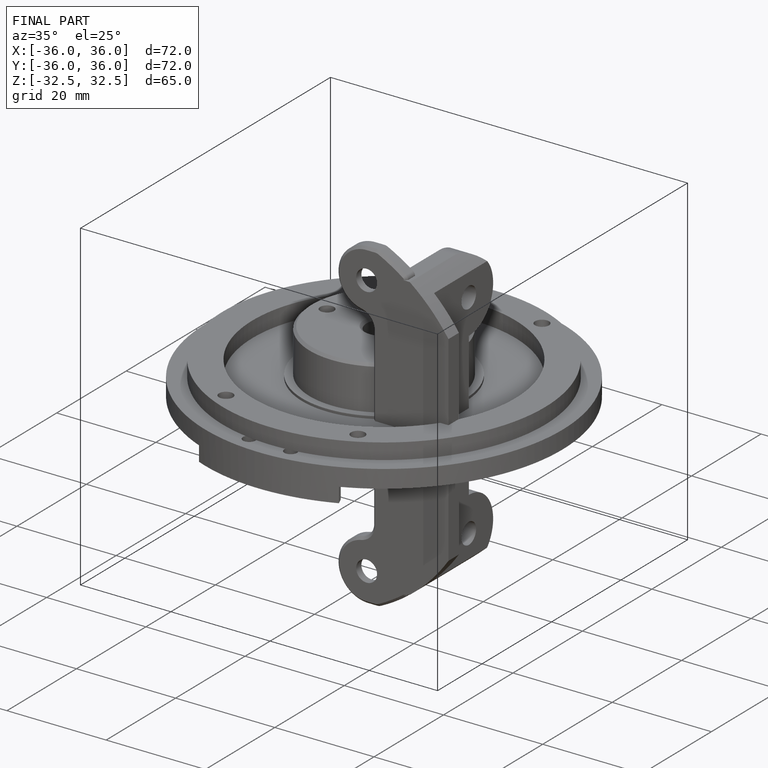
[diagram: finished part — iso view with bounding-box wireframe]
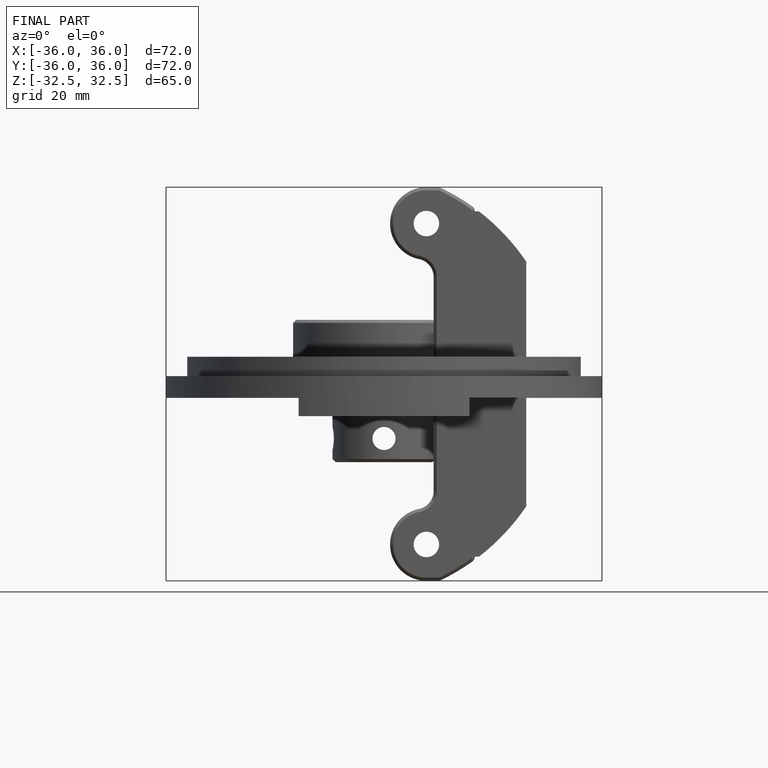
[diagram: finished part — front view with bounding-box wireframe]
